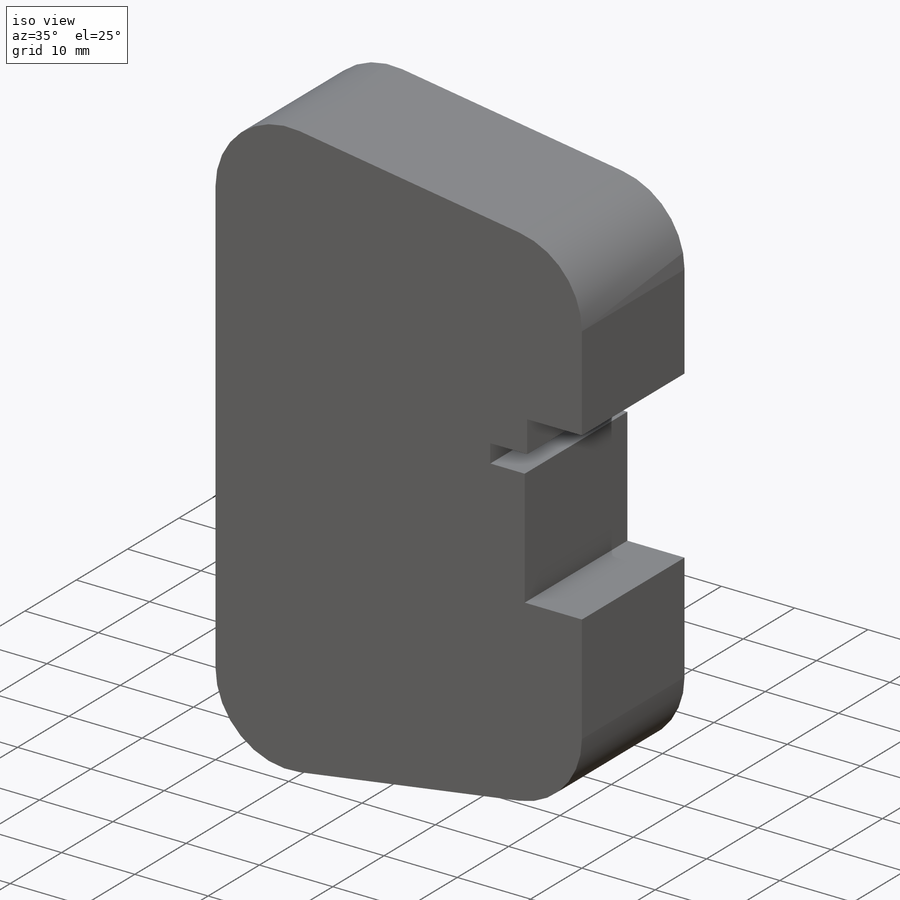
[diagram: iso view]
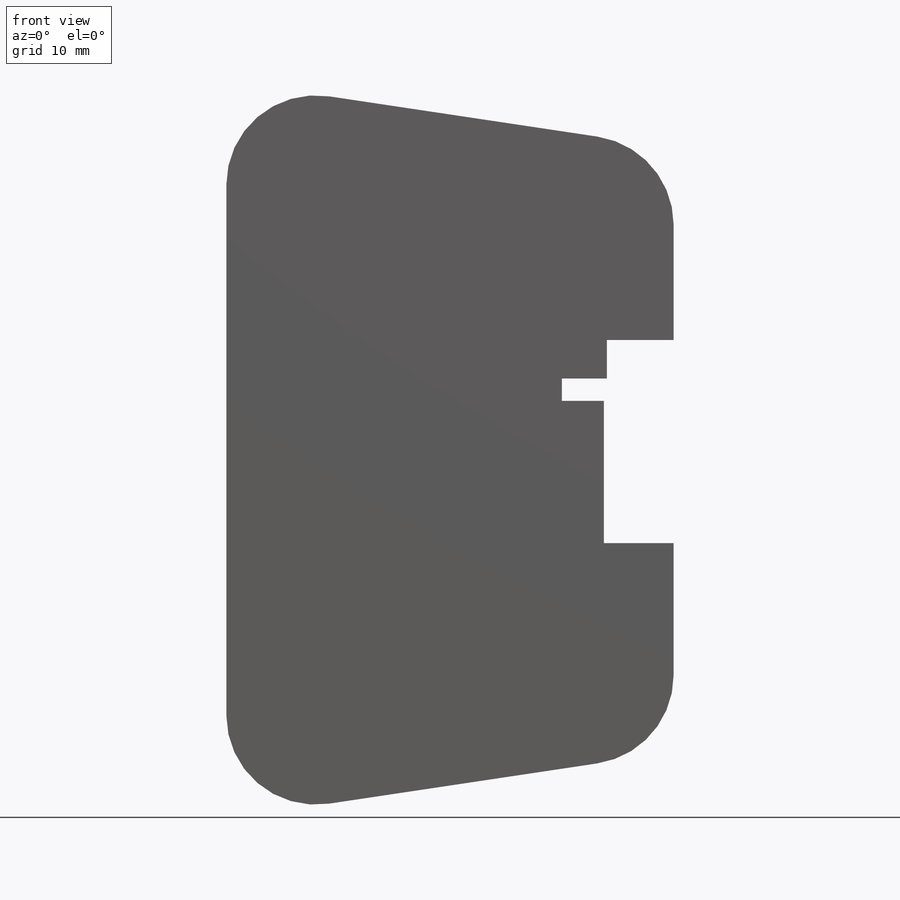
[diagram: front view]
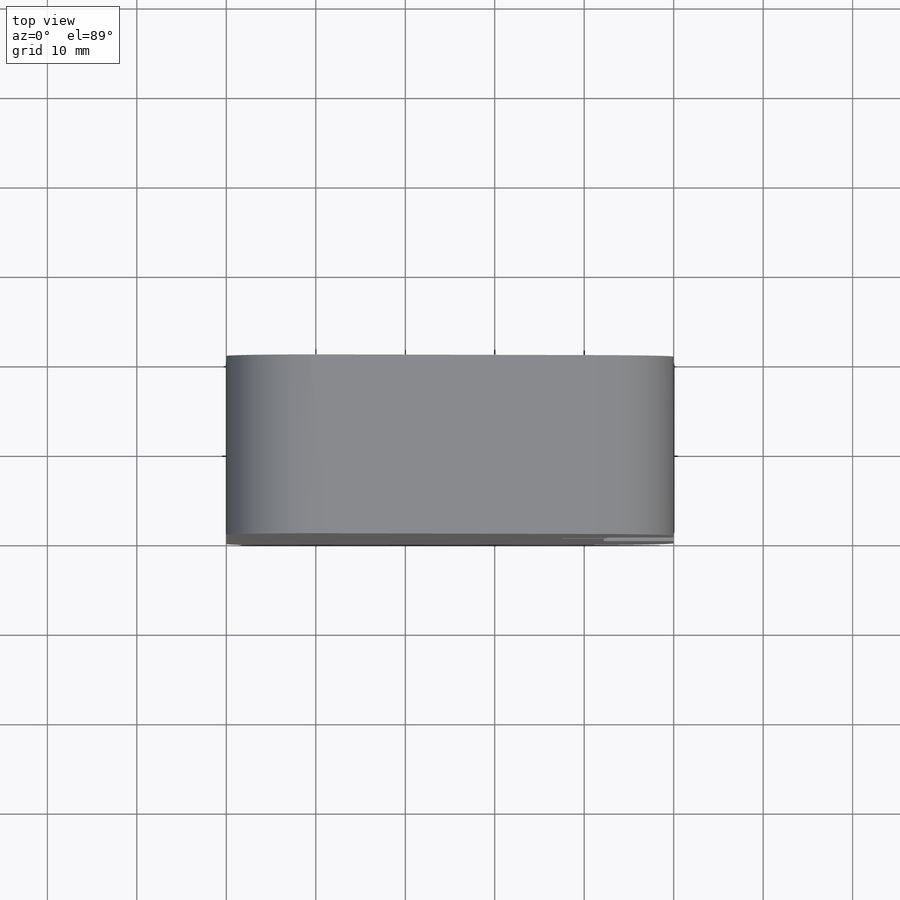
[diagram: top view]
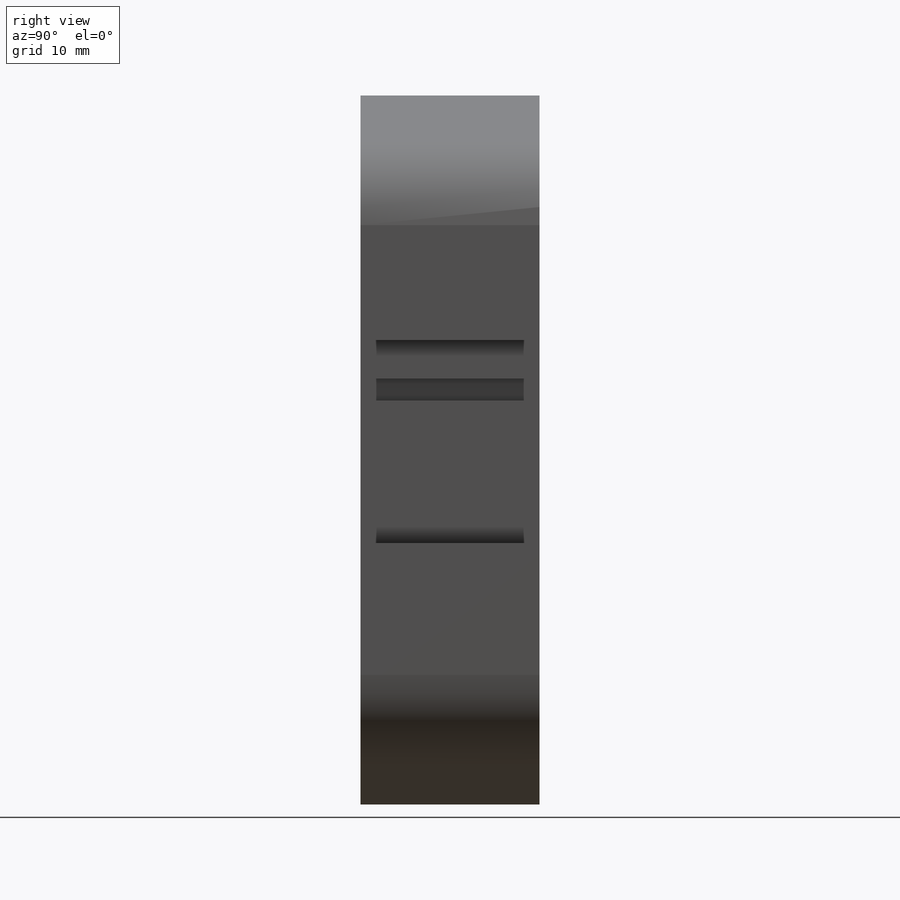
[diagram: right view]
SOLIDWORKS PART (.sldprt)
format: sldprt  version: not decoded by parser v0  size: 203,776 bytes
history: native  units: mm
features: sketch x5, cut_extrude x4, material x1, extrude x1 (+13 scaffold rows collapsed)
feature tree (24):
  scaffold x13  (default folders/planes/origin — collapsed)
  material  "Polyurethane Foam Rigid"
  sketch  "Sketch1"  dims[D4=10.0mm D5=10.0mm D1=50.0mm D2=82.5mm D3=67.5mm]
  extrude  "Boss-Extrude1"  Depth=20mm
  sketch  "Sketch5"  dims[D1=9.0mm]
  cut_extrude  "Cut-Extrude4"  Depth=10mm
  sketch  "Sketch6"  dims[D1=1.0mm]
  cut_extrude  "Cut-Extrude5"  Depth=5mm
  sketch  "Sketch9"  dims[c1.D1=~7.799149mm c1.D2=7.8mm c2.D1=~5.034302mm c2.D3=4.7mm]
  cut_extrude  "Cut-Extrude6"  [1 undecoded]
  sketch  "Sketch11"  dims[D1=2.0mm D2=2.3mm D3=5.03mm]
  cut_extrude  "Cut-Extrude7"  Depth=5mm
decode coverage: 9 of 10 modeling features carry decoded parameters
note: ~ marks probable driven/reference dimensions
note: 1 parameter value undecoded
note: suppression state not decoded; provenance and decode notes live in map.json
